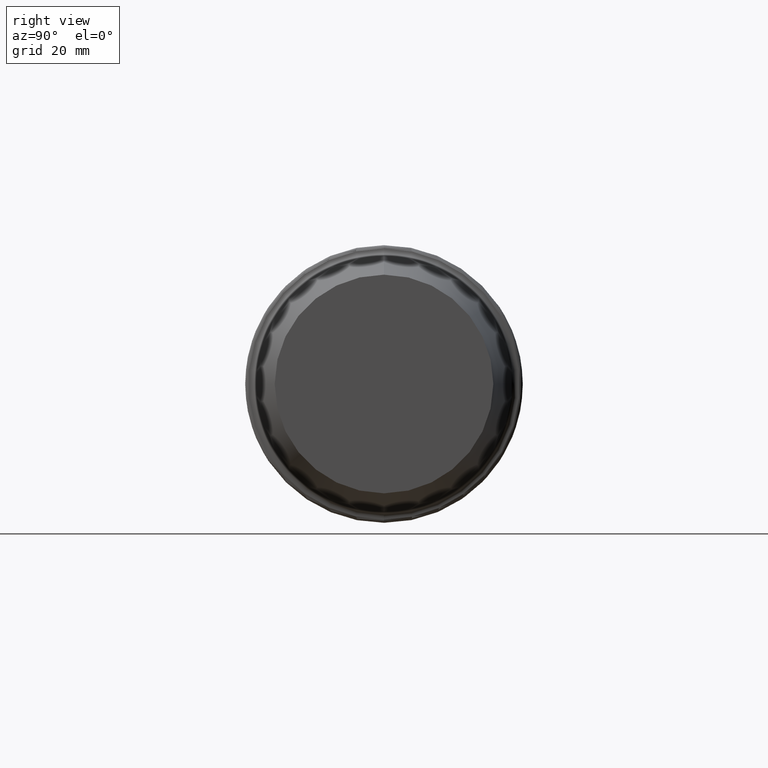
[diagram: clean part render]
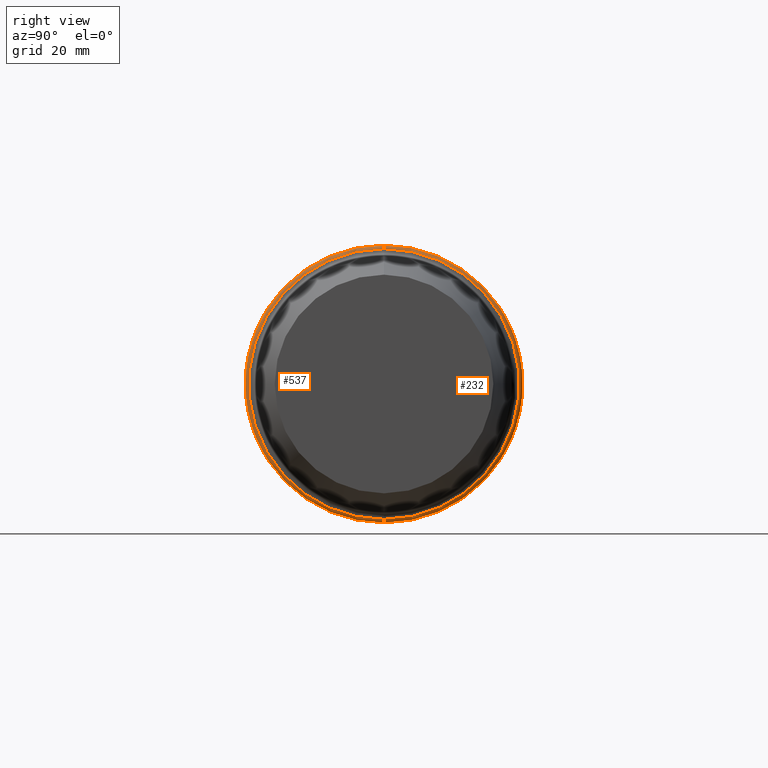
[diagram: same view with one multi-face feature highlighted, each face labeled with its STEP entity id]
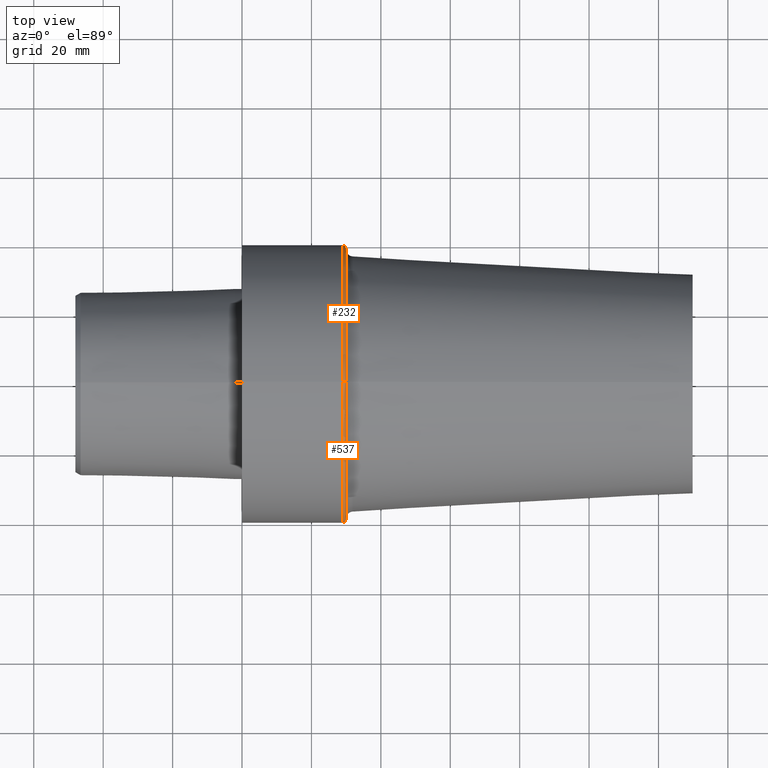
[diagram: same view with one multi-face feature highlighted, each face labeled with its STEP entity id]
A machine part, right view. The highlighted faces form ONE feature: a constant-radius fillet chain: 2 tangent blend faces with common blend radius 1 mm. The faces share edges in the B-rep.
A second angle (top view) of the same feature is appended — it is thin or edge-on in the first view.
Their STEP definitions:
[1] entity #232 (Torus):
#6 = CIRCLE ( 'NONE', #113, 0.9999999989799973621 ) ;
#25 = CARTESIAN_POINT ( 'NONE',  ( 28.99999997311141797, 4.897668707065322260E-15, -39.99249996386929951 ) ) ;
#36 = DIRECTION ( 'NONE',  ( -1.000000000000000000, 0.000000000000000000, 0.000000000000000000 ) ) ;
#39 = FACE_OUTER_BOUND ( 'NONE', #176, .T. ) ;
#49 = DIRECTION ( 'NONE',  ( -1.000000000000000000, 0.000000000000000000, 0.000000000000000000 ) ) ;
#54 = CARTESIAN_POINT ( 'NONE',  ( 29.99999997209141611, 4.836436367170416693E-15, -38.99249996488934045 ) ) ;
#64 = AXIS2_PLACEMENT_3D ( 'NONE', #501, #85, #367 ) ;
#85 = DIRECTION ( 'NONE',  ( 0.000000000000000000, 1.000000000000000000, 1.224646799147353947E-16 ) ) ;
#86 = ORIENTED_EDGE ( 'NONE', *, *, #213, .F. ) ;
#88 = ORIENTED_EDGE ( 'NONE', *, *, #199, .T. ) ;
#92 = CIRCLE ( 'NONE', #64, 0.9999999989799973621 ) ;
#113 = AXIS2_PLACEMENT_3D ( 'NONE', #343, #188, #511 ) ;
#160 = CARTESIAN_POINT ( 'NONE',  ( 29.99999997209141611, 0.000000000000000000, 38.99249996488934045 ) ) ;
#163 = DIRECTION ( 'NONE',  ( -1.000000000000000000, 0.000000000000000000, 0.000000000000000000 ) ) ;
#176 = EDGE_LOOP ( 'NONE', ( #269, #88, #86, #218 ) ) ;
#179 = EDGE_CURVE ( 'NONE', #412, #378, #418, .T. ) ;
#188 = DIRECTION ( 'NONE',  ( 0.000000000000000000, -1.000000000000000000, 0.000000000000000000 ) ) ;
#191 = AXIS2_PLACEMENT_3D ( 'NONE', #295, #36, #341 ) ;
#199 = EDGE_CURVE ( 'NONE', #378, #430, #92, .T. ) ;
#211 = AXIS2_PLACEMENT_3D ( 'NONE', #250, #163, #332 ) ;
#213 = EDGE_CURVE ( 'NONE', #392, #430, #388, .T. ) ;
#218 = ORIENTED_EDGE ( 'NONE', *, *, #321, .F. ) ;
#232 = ADVANCED_FACE ( 'NONE', ( #39 ), #463, .T. ) ;
#250 = CARTESIAN_POINT ( 'NONE',  ( 28.99999997311141797, 0.000000000000000000, 0.000000000000000000 ) ) ;
#269 = ORIENTED_EDGE ( 'NONE', *, *, #179, .T. ) ;
#282 = AXIS2_PLACEMENT_3D ( 'NONE', #373, #49, #447 ) ;
#295 = CARTESIAN_POINT ( 'NONE',  ( 29.99999997209141611, 0.000000000000000000, 0.000000000000000000 ) ) ;
#321 = EDGE_CURVE ( 'NONE', #412, #392, #6, .T. ) ;
#332 = DIRECTION ( 'NONE',  ( 0.000000000000000000, 0.000000000000000000, 1.000000000000000000 ) ) ;
#341 = DIRECTION ( 'NONE',  ( 0.000000000000000000, 0.000000000000000000, 1.000000000000000000 ) ) ;
#343 = CARTESIAN_POINT ( 'NONE',  ( 28.99999997311141797, 0.000000000000000000, 38.99249996488934045 ) ) ;
#367 = DIRECTION ( 'NONE',  ( 0.000000000000000000, -1.224646799147358384E-16, 1.000000000000000000 ) ) ;
#373 = CARTESIAN_POINT ( 'NONE',  ( 28.99999997311141797, 0.000000000000000000, 0.000000000000000000 ) ) ;
#378 = VERTEX_POINT ( 'NONE', #54 ) ;
#388 = CIRCLE ( 'NONE', #211, 39.99249996386929951 ) ;
#392 = VERTEX_POINT ( 'NONE', #477 ) ;
#412 = VERTEX_POINT ( 'NONE', #160 ) ;
#418 = CIRCLE ( 'NONE', #191, 38.99249996488934045 ) ;
#430 = VERTEX_POINT ( 'NONE', #25 ) ;
#447 = DIRECTION ( 'NONE',  ( 0.000000000000000000, 0.000000000000000000, 1.000000000000000000 ) ) ;
#463 = TOROIDAL_SURFACE ( 'NONE', #282, 38.99249996488934045, 0.9999999989799999156 ) ;
#477 = CARTESIAN_POINT ( 'NONE',  ( 28.99999997311141797, 0.000000000000000000, 39.99249996386929951 ) ) ;
#501 = CARTESIAN_POINT ( 'NONE',  ( 28.99999997311141797, 4.775204027275495348E-15, -38.99249996488934045 ) ) ;
#511 = DIRECTION ( 'NONE',  ( 0.000000000000000000, 0.000000000000000000, -1.000000000000000000 ) ) ;
[2] entity #537 (Torus):
#4 = ORIENTED_EDGE ( 'NONE', *, *, #321, .T. ) ;
#6 = CIRCLE ( 'NONE', #113, 0.9999999989799973621 ) ;
#20 = DIRECTION ( 'NONE',  ( -1.000000000000000000, 0.000000000000000000, 0.000000000000000000 ) ) ;
#25 = CARTESIAN_POINT ( 'NONE',  ( 28.99999997311141797, 4.897668707065322260E-15, -39.99249996386929951 ) ) ;
#28 = TOROIDAL_SURFACE ( 'NONE', #58, 38.99249996488934045, 0.9999999989799999156 ) ;
#54 = CARTESIAN_POINT ( 'NONE',  ( 29.99999997209141611, 4.836436367170416693E-15, -38.99249996488934045 ) ) ;
#58 = AXIS2_PLACEMENT_3D ( 'NONE', #352, #209, #357 ) ;
#64 = AXIS2_PLACEMENT_3D ( 'NONE', #501, #85, #367 ) ;
#70 = DIRECTION ( 'NONE',  ( -1.000000000000000000, 0.000000000000000000, 0.000000000000000000 ) ) ;
#85 = DIRECTION ( 'NONE',  ( 0.000000000000000000, 1.000000000000000000, 1.224646799147353947E-16 ) ) ;
#90 = ORIENTED_EDGE ( 'NONE', *, *, #395, .F. ) ;
#92 = CIRCLE ( 'NONE', #64, 0.9999999989799973621 ) ;
#100 = EDGE_CURVE ( 'NONE', #378, #412, #452, .T. ) ;
#103 = DIRECTION ( 'NONE',  ( 0.000000000000000000, 0.000000000000000000, 1.000000000000000000 ) ) ;
#112 = FACE_OUTER_BOUND ( 'NONE', #286, .T. ) ;
#113 = AXIS2_PLACEMENT_3D ( 'NONE', #343, #188, #511 ) ;
#149 = AXIS2_PLACEMENT_3D ( 'NONE', #236, #70, #103 ) ;
#160 = CARTESIAN_POINT ( 'NONE',  ( 29.99999997209141611, 0.000000000000000000, 38.99249996488934045 ) ) ;
#164 = ORIENTED_EDGE ( 'NONE', *, *, #100, .T. ) ;
#188 = DIRECTION ( 'NONE',  ( 0.000000000000000000, -1.000000000000000000, 0.000000000000000000 ) ) ;
#199 = EDGE_CURVE ( 'NONE', #378, #430, #92, .T. ) ;
#209 = DIRECTION ( 'NONE',  ( -1.000000000000000000, 0.000000000000000000, 0.000000000000000000 ) ) ;
#236 = CARTESIAN_POINT ( 'NONE',  ( 28.99999997311141797, 0.000000000000000000, 0.000000000000000000 ) ) ;
#276 = CARTESIAN_POINT ( 'NONE',  ( 29.99999997209141611, 0.000000000000000000, 0.000000000000000000 ) ) ;
#286 = EDGE_LOOP ( 'NONE', ( #457, #164, #4, #90 ) ) ;
#321 = EDGE_CURVE ( 'NONE', #412, #392, #6, .T. ) ;
#343 = CARTESIAN_POINT ( 'NONE',  ( 28.99999997311141797, 0.000000000000000000, 38.99249996488934045 ) ) ;
#352 = CARTESIAN_POINT ( 'NONE',  ( 28.99999997311141797, 0.000000000000000000, 0.000000000000000000 ) ) ;
#357 = DIRECTION ( 'NONE',  ( 0.000000000000000000, 0.000000000000000000, 1.000000000000000000 ) ) ;
#359 = AXIS2_PLACEMENT_3D ( 'NONE', #276, #20, #524 ) ;
#367 = DIRECTION ( 'NONE',  ( 0.000000000000000000, -1.224646799147358384E-16, 1.000000000000000000 ) ) ;
#378 = VERTEX_POINT ( 'NONE', #54 ) ;
#386 = CIRCLE ( 'NONE', #149, 39.99249996386929951 ) ;
#392 = VERTEX_POINT ( 'NONE', #477 ) ;
#395 = EDGE_CURVE ( 'NONE', #430, #392, #386, .T. ) ;
#412 = VERTEX_POINT ( 'NONE', #160 ) ;
#430 = VERTEX_POINT ( 'NONE', #25 ) ;
#452 = CIRCLE ( 'NONE', #359, 38.99249996488934045 ) ;
#457 = ORIENTED_EDGE ( 'NONE', *, *, #199, .F. ) ;
#477 = CARTESIAN_POINT ( 'NONE',  ( 28.99999997311141797, 0.000000000000000000, 39.99249996386929951 ) ) ;
#501 = CARTESIAN_POINT ( 'NONE',  ( 28.99999997311141797, 4.775204027275495348E-15, -38.99249996488934045 ) ) ;
#511 = DIRECTION ( 'NONE',  ( 0.000000000000000000, 0.000000000000000000, -1.000000000000000000 ) ) ;
#524 = DIRECTION ( 'NONE',  ( 0.000000000000000000, 0.000000000000000000, 1.000000000000000000 ) ) ;
#537 = ADVANCED_FACE ( 'NONE', ( #112 ), #28, .T. ) ;